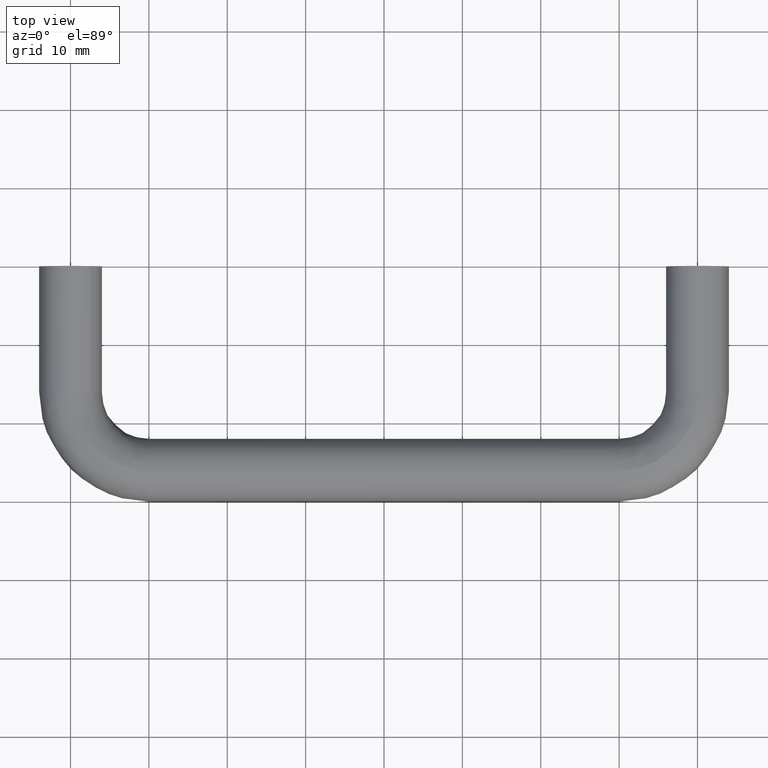
[diagram: clean part render]
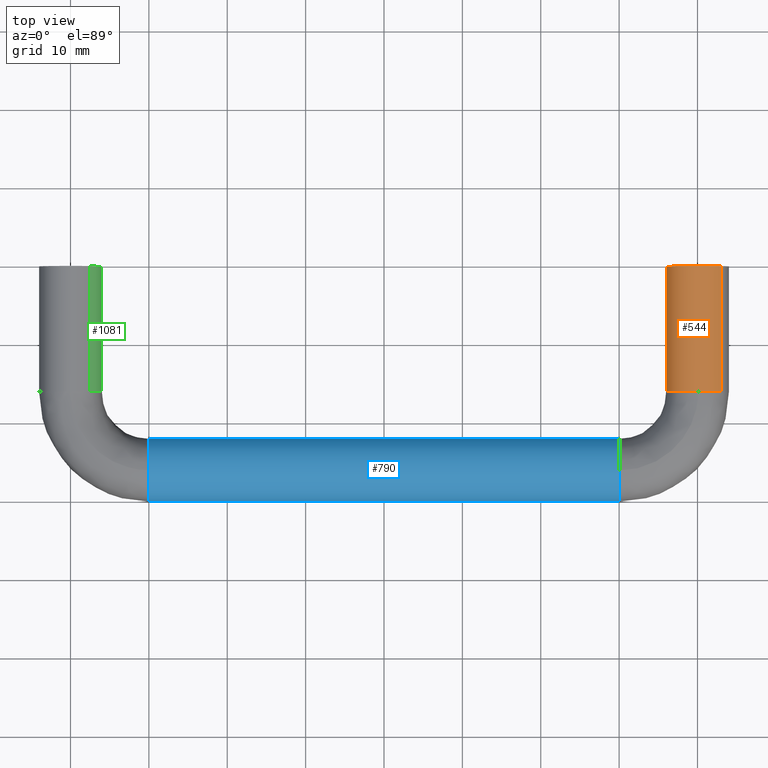
[diagram: same view with three faces highlighted in distinct colors, each labeled with its STEP entity id]
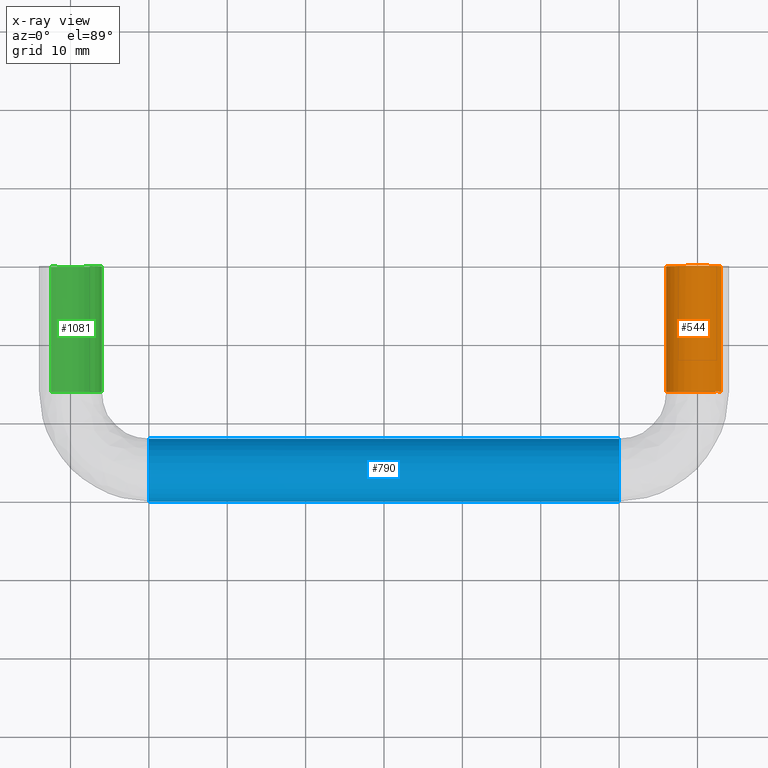
[diagram: x-ray of the same camera — body ghosted, the three highlighted faces saturated]
A machine part, top view with three faces highlighted in distinct colors.
The next image is the same camera in x-ray (body ghosted, the three faces saturated) — at least one of them is partly hidden behind the body in this view.
Their STEP definitions:

[orange] entity #544 — the highlighted face is a freeform B-spline surface patch.
#408=CARTESIAN_POINT('',(82.286842443536074,-16.400000000610678,-3.281821390393139));
#409=CARTESIAN_POINT('',(79.364407731794643,-16.400000000610675,-5.318235607460819));
#410=CARTESIAN_POINT('',(77.004177116843991,-16.400000000610682,-2.650480192862948));
#411=CARTESIAN_POINT('',(74.353696923981047,-16.400000000610671,0.345342690293061));
#412=CARTESIAN_POINT('',(77.349519807137057,-16.400000000610682,2.995822883156009));
#413=CARTESIAN_POINT('',(80.345342690293066,-16.400000000610671,5.646303076018955));
#414=CARTESIAN_POINT('',(82.995822883156009,-16.400000000610682,2.650480192862948));
#415=CARTESIAN_POINT('',(82.286842443536074,0.410000000015277,-3.281821390393139));
#416=CARTESIAN_POINT('',(79.364407731794643,0.410000000015277,-5.318235607460819));
#417=CARTESIAN_POINT('',(77.004177116843991,0.410000000015277,-2.650480192862948));
#418=CARTESIAN_POINT('',(74.353696923981047,0.410000000015277,0.345342690293061));
#419=CARTESIAN_POINT('',(77.349519807137057,0.410000000015277,2.995822883156009));
#420=CARTESIAN_POINT('',(80.345342690293066,0.410000000015277,5.646303076018955));
#421=CARTESIAN_POINT('',(82.995822883156009,0.410000000015277,2.650480192862948));
#429=(BOUNDED_SURFACE()B_SPLINE_SURFACE(2,1,((#408,#415),(#409,#416),(#410,#417),(#411,#418),(#412,#419),(#413,#420),(#414,#421)),.UNSPECIFIED.,.F.,.F.,.U.)B_SPLINE_SURFACE_WITH_KNOTS((3,2,2,3),(2,2),(0.0,6.097223638131967,12.724640636101499,19.352057634071031),(0.0,16.810000000625958),.UNSPECIFIED.)GEOMETRIC_REPRESENTATION_ITEM()RATIONAL_B_SPLINE_SURFACE(((0.956886118190660,0.956886118190660),(0.730538238691624,0.730538238691624),(1.0,1.0),(0.707106781186548,0.707106781186548),(1.0,1.0),(0.707106781186548,0.707106781186548),(1.0,1.0)))REPRESENTATION_ITEM('')SURFACE());
#430=CARTESIAN_POINT('',(79.899479618137065,-16.000000000145992,-3.998736757130948));
#431=VERTEX_POINT('',#430);
#432=CARTESIAN_POINT('',(82.286842443537779,-16.0,-3.281821390391957));
#433=VERTEX_POINT('',#432);
#434=CARTESIAN_POINT('',(79.899479618137065,-16.000000000145995,-3.998736757130948));
#435=CARTESIAN_POINT('',(79.949731871416873,-16.000000000000004,-4.000000000000000));
#436=CARTESIAN_POINT('',(80.0,-16.0,-4.0));
#437=CARTESIAN_POINT('',(81.256192549054944,-15.999999999999996,-4.0));
#438=CARTESIAN_POINT('',(82.286842443537779,-16.000000000000004,-3.281821390391957));
#446=(BOUNDED_CURVE()B_SPLINE_CURVE(2,(#434,#435,#436,#437,#438),.UNSPECIFIED.,.F.,.U.)B_SPLINE_CURVE_WITH_KNOTS((3,2,3),(0.245579891761969,0.250000000000000,0.348251884123377),.UNSPECIFIED.)CURVE()GEOMETRIC_REPRESENTATION_ITEM()RATIONAL_B_SPLINE_CURVE((0.989826157663860,0.994821521082637,1.0,0.884890757618471,0.860259114788940))REPRESENTATION_ITEM(''));
#447=EDGE_CURVE('',#431,#433,#446,.T.);
#448=ORIENTED_EDGE('',*,*,#447,.F.);
#449=CARTESIAN_POINT('',(76.0,-16.0,0.0));
#450=VERTEX_POINT('',#449);
#451=CARTESIAN_POINT('',(76.0,-16.0,0.0));
#452=CARTESIAN_POINT('',(76.0,-15.999999999999998,-3.900711504547809));
#453=CARTESIAN_POINT('',(79.899479618137065,-16.000000000145992,-3.998736757130948));
#461=(BOUNDED_CURVE()B_SPLINE_CURVE(2,(#451,#452,#453),.UNSPECIFIED.,.F.,.U.)B_SPLINE_CURVE_WITH_KNOTS((3,3),(0.0,0.245579891761969),.UNSPECIFIED.)CURVE()GEOMETRIC_REPRESENTATION_ITEM()RATIONAL_B_SPLINE_CURVE((1.0,0.712285260103910,0.989826157663860))REPRESENTATION_ITEM(''));
#462=EDGE_CURVE('',#450,#431,#461,.T.);
#463=ORIENTED_EDGE('',*,*,#462,.F.);
#464=CARTESIAN_POINT('',(80.100520384521587,-16.000000000595779,3.998736757064114));
#465=VERTEX_POINT('',#464);
#466=CARTESIAN_POINT('',(80.100520384521587,-16.000000000595783,3.998736757064113));
#467=CARTESIAN_POINT('',(80.050268131243058,-16.000000000000004,4.0));
#468=CARTESIAN_POINT('',(80.0,-16.0,4.0));
#469=CARTESIAN_POINT('',(76.0,-15.999999999999998,4.000000000000000));
#470=CARTESIAN_POINT('',(76.0,-16.0,0.0));
#478=(BOUNDED_CURVE()B_SPLINE_CURVE(2,(#466,#467,#468,#469,#470),.UNSPECIFIED.,.F.,.U.)B_SPLINE_CURVE_WITH_KNOTS((3,2,3),(0.745579891529291,0.750000000000000,1.0),.UNSPECIFIED.)CURVE()GEOMETRIC_REPRESENTATION_ITEM()RATIONAL_B_SPLINE_CURVE((0.989826157137938,0.994821520810037,1.0,0.707106781186548,1.0))REPRESENTATION_ITEM(''));
#479=EDGE_CURVE('',#465,#450,#478,.T.);
#480=ORIENTED_EDGE('',*,*,#479,.F.);
#481=CARTESIAN_POINT('',(82.995824228330804,-16.000000000153481,2.650478672026813));
#482=VERTEX_POINT('',#481);
#483=CARTESIAN_POINT('',(82.995824228330804,-16.000000000153474,2.650478672026814));
#484=CARTESIAN_POINT('',(81.841711962091964,-16.000000000329749,3.954966621062498));
#485=CARTESIAN_POINT('',(80.100520384521587,-16.000000000595783,3.998736757064113));
#493=(BOUNDED_CURVE()B_SPLINE_CURVE(2,(#483,#484,#485),.UNSPECIFIED.,.F.,.U.)B_SPLINE_CURVE_WITH_KNOTS((3,3),(0.615779811379745,0.745579891529291),.UNSPECIFIED.)CURVE()GEOMETRIC_REPRESENTATION_ITEM()RATIONAL_B_SPLINE_CURVE((0.854350171477797,0.843133240140239,0.989826157137938))REPRESENTATION_ITEM(''));
#494=EDGE_CURVE('',#482,#465,#493,.T.);
#495=ORIENTED_EDGE('',*,*,#494,.F.);
#496=CARTESIAN_POINT('',(82.995824313989800,9.978129E-015,2.650478575597776));
#497=VERTEX_POINT('',#496);
#498=CARTESIAN_POINT('',(82.995824228330804,-16.000000000153481,2.650478672026813));
#499=CARTESIAN_POINT('',(82.995824313989800,9.978129E-015,2.650478575597776));
#500=QUASI_UNIFORM_CURVE('',1,(#498,#499),.UNSPECIFIED.,.F.,.U.);
#501=EDGE_CURVE('',#482,#497,#500,.T.);
#502=ORIENTED_EDGE('',*,*,#501,.T.);
#503=CARTESIAN_POINT('',(76.0,1.040834E-014,0.0));
#504=VERTEX_POINT('',#503);
#505=CARTESIAN_POINT('',(82.995824313989786,9.978129E-015,2.650478575597777));
#506=CARTESIAN_POINT('',(81.801869913532229,1.040834E-014,4.0));
#507=CARTESIAN_POINT('',(80.0,1.040834E-014,4.0));
#508=CARTESIAN_POINT('',(76.0,1.040834E-014,4.000000000000000));
#509=CARTESIAN_POINT('',(76.0,1.040834E-014,0.0));
#517=(BOUNDED_CURVE()B_SPLINE_CURVE(2,(#505,#506,#507,#508,#509),.UNSPECIFIED.,.F.,.U.)B_SPLINE_CURVE_WITH_KNOTS((3,2,3),(0.615779806528000,0.750000000000000,1.0),.UNSPECIFIED.)CURVE()GEOMETRIC_REPRESENTATION_ITEM()RATIONAL_B_SPLINE_CURVE((0.854350172316343,0.842751262016887,1.0,0.707106781186548,1.0))REPRESENTATION_ITEM(''));
#518=EDGE_CURVE('',#497,#504,#517,.T.);
#519=ORIENTED_EDGE('',*,*,#518,.T.);
#520=CARTESIAN_POINT('',(82.286842456896807,1.080236E-014,-3.281821381083093));
#521=VERTEX_POINT('',#520);
#522=CARTESIAN_POINT('',(76.0,1.040834E-014,0.0));
#523=CARTESIAN_POINT('',(76.0,1.040834E-014,-4.000000000000000));
#524=CARTESIAN_POINT('',(80.0,1.040834E-014,-4.0));
#525=CARTESIAN_POINT('',(81.256192566943326,1.040834E-014,-4.0));
#526=CARTESIAN_POINT('',(82.286842456896807,1.080236E-014,-3.281821381083093));
#534=(BOUNDED_CURVE()B_SPLINE_CURVE(2,(#522,#523,#524,#525,#526),.UNSPECIFIED.,.F.,.U.)B_SPLINE_CURVE_WITH_KNOTS((3,2,3),(0.0,0.250000000000000,0.348251885361446),.UNSPECIFIED.)CURVE()GEOMETRIC_REPRESENTATION_ITEM()RATIONAL_B_SPLINE_CURVE((1.0,0.707106781186548,1.0,0.884890756167983,0.860259114168175))REPRESENTATION_ITEM(''));
#535=EDGE_CURVE('',#504,#521,#534,.T.);
#536=ORIENTED_EDGE('',*,*,#535,.T.);
#537=CARTESIAN_POINT('',(82.286842443537779,-16.0,-3.281821390391957));
#538=CARTESIAN_POINT('',(82.286842456896807,1.080236E-014,-3.281821381083093));
#539=QUASI_UNIFORM_CURVE('',1,(#537,#538),.UNSPECIFIED.,.F.,.U.);
#540=EDGE_CURVE('',#433,#521,#539,.T.);
#541=ORIENTED_EDGE('',*,*,#540,.F.);
#542=EDGE_LOOP('',(#448,#463,#480,#495,#502,#519,#536,#541));
#543=FACE_OUTER_BOUND('',#542,.T.);
#544=ADVANCED_FACE('',(#543),#429,.T.);

[blue] entity #790 — the highlighted face is a freeform B-spline surface patch.
#624=CARTESIAN_POINT('',(8.499999999361522,-23.512770200789916,-3.132680629416496));
#625=CARTESIAN_POINT('',(8.499999999361522,-23.237270391724497,-2.913944212959058));
#626=CARTESIAN_POINT('',(8.499999999361522,-23.004177116843991,-2.650480192862946));
#627=CARTESIAN_POINT('',(8.499999999361522,-20.353696923981044,0.345342690293064));
#628=CARTESIAN_POINT('',(8.499999999361522,-23.349519807137050,2.995822883156010));
#629=CARTESIAN_POINT('',(8.499999999361522,-26.345342690293069,5.646303076018955));
#630=CARTESIAN_POINT('',(8.499999999361522,-28.995822883156009,2.650480192862946));
#631=CARTESIAN_POINT('',(8.499999999361522,-31.646303076018953,-0.345342690293064));
#632=CARTESIAN_POINT('',(8.499999999361522,-28.650480192862950,-2.995822883156010));
#633=CARTESIAN_POINT('',(71.537500000196090,-23.512770200789905,-3.132680629416496));
#634=CARTESIAN_POINT('',(71.537500000196090,-23.237270391724483,-2.913944212959058));
#635=CARTESIAN_POINT('',(71.537500000196090,-23.004177116843980,-2.650480192862946));
#636=CARTESIAN_POINT('',(71.537500000196104,-20.353696923981044,0.345342690293064));
#637=CARTESIAN_POINT('',(71.537500000196090,-23.349519807137050,2.995822883156010));
#638=CARTESIAN_POINT('',(71.537500000196104,-26.345342690293052,5.646303076018955));
#639=CARTESIAN_POINT('',(71.537500000196090,-28.995822883155999,2.650480192862946));
#640=CARTESIAN_POINT('',(71.537500000196104,-31.646303076018953,-0.345342690293064));
#641=CARTESIAN_POINT('',(71.537500000196090,-28.650480192862940,-2.995822883156010));
#649=(BOUNDED_SURFACE()B_SPLINE_SURFACE(2,1,((#624,#633),(#625,#634),(#626,#635),(#627,#636),(#628,#637),(#629,#638),(#630,#639),(#631,#640),(#632,#641)),.UNSPECIFIED.,.F.,.F.,.U.)B_SPLINE_SURFACE_WITH_KNOTS((3,2,2,2,3),(2,2),(0.0,0.795290039756342,7.422707037725860,14.050124035695379,20.677541033664902),(0.0,63.037500000834576),.UNSPECIFIED.)GEOMETRIC_REPRESENTATION_ITEM()RATIONAL_B_SPLINE_SURFACE(((0.938140952186599,0.938140952186599),(0.964852813742386,0.964852813742386),(1.0,1.0),(0.707106781186548,0.707106781186548),(1.0,1.0),(0.707106781186548,0.707106781186548),(1.0,1.0),(0.707106781186548,0.707106781186548),(1.0,1.0)))REPRESENTATION_ITEM('')SURFACE());
#650=CARTESIAN_POINT('',(70.0,-22.0,0.0));
#651=VERTEX_POINT('',#650);
#652=CARTESIAN_POINT('',(70.000000000068184,-23.512772870504168,-3.132682749045181));
#653=VERTEX_POINT('',#652);
#654=CARTESIAN_POINT('',(70.0,-22.0,0.0));
#655=CARTESIAN_POINT('',(70.0,-22.000000000000007,-1.931600473656280));
#656=CARTESIAN_POINT('',(70.000000000068184,-23.512772870504158,-3.132682749045181));
#664=(BOUNDED_CURVE()B_SPLINE_CURVE(2,(#654,#655,#656),.UNSPECIFIED.,.F.,.U.)B_SPLINE_CURVE_WITH_KNOTS((3,3),(0.0,0.142272992642191),.UNSPECIFIED.)CURVE()GEOMETRIC_REPRESENTATION_ITEM()RATIONAL_B_SPLINE_CURVE((1.0,0.833316820939224,0.856349759543174))REPRESENTATION_ITEM(''));
#665=EDGE_CURVE('',#651,#653,#664,.T.);
#666=ORIENTED_EDGE('',*,*,#665,.T.);
#667=CARTESIAN_POINT('',(9.999999999955744,-23.512770200805161,-3.132680629395788));
#668=VERTEX_POINT('',#667);
#669=CARTESIAN_POINT('',(9.999999999955744,-23.512770200805161,-3.132680629395788));
#670=CARTESIAN_POINT('',(70.000000000068184,-23.512772870504168,-3.132682749045181));
#671=QUASI_UNIFORM_CURVE('',1,(#669,#670),.UNSPECIFIED.,.F.,.U.);
#672=EDGE_CURVE('',#668,#653,#671,.T.);
#673=ORIENTED_EDGE('',*,*,#672,.F.);
#674=CARTESIAN_POINT('',(10.0,-22.0,0.0));
#675=VERTEX_POINT('',#674);
#676=CARTESIAN_POINT('',(10.0,-22.0,0.0));
#677=CARTESIAN_POINT('',(10.0,-21.999999999999996,-1.931598371755627));
#678=CARTESIAN_POINT('',(9.999999999955744,-23.512770200805161,-3.132680629395788));
#686=(BOUNDED_CURVE()B_SPLINE_CURVE(2,(#676,#677,#678),.UNSPECIFIED.,.F.,.U.)B_SPLINE_CURVE_WITH_KNOTS((3,3),(0.0,0.142272863630943),.UNSPECIFIED.)CURVE()GEOMETRIC_REPRESENTATION_ITEM()RATIONAL_B_SPLINE_CURVE((1.0,0.833316972085303,0.856349717771409))REPRESENTATION_ITEM(''));
#687=EDGE_CURVE('',#675,#668,#686,.T.);
#688=ORIENTED_EDGE('',*,*,#687,.F.);
#689=CARTESIAN_POINT('',(9.999999999381382,-26.050264162204599,3.999684176781694));
#690=VERTEX_POINT('',#689);
#691=CARTESIAN_POINT('',(9.999999999381382,-26.050264162204602,3.999684176781694));
#692=CARTESIAN_POINT('',(10.0,-26.025133074639072,4.000000000000000));
#693=CARTESIAN_POINT('',(10.0,-26.0,4.0));
#694=CARTESIAN_POINT('',(10.000000000000002,-22.000000000000007,4.000000000000000));
#695=CARTESIAN_POINT('',(10.0,-22.0,0.0));
#703=(BOUNDED_CURVE()B_SPLINE_CURVE(2,(#691,#692,#693,#694,#695),.UNSPECIFIED.,.F.,.U.)B_SPLINE_CURVE_WITH_KNOTS((3,2,3),(0.747784295686822,0.750000000000000,1.0),.UNSPECIFIED.)CURVE()GEOMETRIC_REPRESENTATION_ITEM()RATIONAL_B_SPLINE_CURVE((0.994854295103350,0.997404140927098,1.0,0.707106781186548,1.0))REPRESENTATION_ITEM(''));
#704=EDGE_CURVE('',#690,#675,#703,.T.);
#705=ORIENTED_EDGE('',*,*,#704,.F.);
#706=CARTESIAN_POINT('',(10.0,-30.0,0.0));
#707=VERTEX_POINT('',#706);
#708=CARTESIAN_POINT('',(10.0,-30.0,0.0));
#709=CARTESIAN_POINT('',(10.0,-30.0,3.950047714352737));
#710=CARTESIAN_POINT('',(9.999999999381382,-26.050264162204602,3.999684176781694));
#718=(BOUNDED_CURVE()B_SPLINE_CURVE(2,(#708,#709,#710),.UNSPECIFIED.,.F.,.U.)B_SPLINE_CURVE_WITH_KNOTS((3,3),(0.500000000000000,0.747784295686821),.UNSPECIFIED.)CURVE()GEOMETRIC_REPRESENTATION_ITEM()RATIONAL_B_SPLINE_CURVE((1.0,0.709702640259450,0.994854295103348))REPRESENTATION_ITEM(''));
#719=EDGE_CURVE('',#707,#690,#718,.T.);
#720=ORIENTED_EDGE('',*,*,#719,.F.);
#721=CARTESIAN_POINT('',(10.0,-28.650478575597770,-2.995824313989811));
#722=VERTEX_POINT('',#721);
#723=CARTESIAN_POINT('',(10.0,-28.650478575597770,-2.995824313989811));
#724=CARTESIAN_POINT('',(10.000000000000002,-29.999999999999996,-1.801869913532229));
#725=CARTESIAN_POINT('',(10.0,-30.0,0.0));
#733=(BOUNDED_CURVE()B_SPLINE_CURVE(2,(#723,#724,#725),.UNSPECIFIED.,.F.,.U.)B_SPLINE_CURVE_WITH_KNOTS((3,3),(0.365779806528000,0.500000000000000),.UNSPECIFIED.)CURVE()GEOMETRIC_REPRESENTATION_ITEM()RATIONAL_B_SPLINE_CURVE((0.854350172316343,0.842751262016886,1.0))REPRESENTATION_ITEM(''));
#734=EDGE_CURVE('',#722,#707,#733,.T.);
#735=ORIENTED_EDGE('',*,*,#734,.F.);
#736=CARTESIAN_POINT('',(70.000000000000014,-28.650478555391039,-2.995824331867176));
#737=VERTEX_POINT('',#736);
#738=CARTESIAN_POINT('',(10.0,-28.650478575597770,-2.995824313989811));
#739=CARTESIAN_POINT('',(70.000000000000014,-28.650478555391039,-2.995824331867176));
#740=QUASI_UNIFORM_CURVE('',1,(#738,#739),.UNSPECIFIED.,.F.,.U.);
#741=EDGE_CURVE('',#722,#737,#740,.T.);
#742=ORIENTED_EDGE('',*,*,#741,.T.);
#743=CARTESIAN_POINT('',(70.0,-30.0,0.0));
#744=VERTEX_POINT('',#743);
#745=CARTESIAN_POINT('',(70.000000000000014,-28.650478555391039,-2.995824331867177));
#746=CARTESIAN_POINT('',(70.0,-30.0,-1.801869929759543));
#747=CARTESIAN_POINT('',(70.0,-30.0,0.0));
#755=(BOUNDED_CURVE()B_SPLINE_CURVE(2,(#745,#746,#747),.UNSPECIFIED.,.F.,.U.)B_SPLINE_CURVE_WITH_KNOTS((3,3),(0.365779805509314,0.500000000000000),.UNSPECIFIED.)CURVE()GEOMETRIC_REPRESENTATION_ITEM()RATIONAL_B_SPLINE_CURVE((0.854350172492407,0.842751260823421,1.0))REPRESENTATION_ITEM(''));
#756=EDGE_CURVE('',#737,#744,#755,.T.);
#757=ORIENTED_EDGE('',*,*,#756,.T.);
#758=CARTESIAN_POINT('',(70.000000000045731,-26.100520382309391,3.998736757119724));
#759=VERTEX_POINT('',#758);
#760=CARTESIAN_POINT('',(70.0,-30.0,0.0));
#761=CARTESIAN_POINT('',(69.999999999999986,-30.0,3.900711503676483));
#762=CARTESIAN_POINT('',(70.000000000045731,-26.100520382309391,3.998736757119725));
#770=(BOUNDED_CURVE()B_SPLINE_CURVE(2,(#760,#761,#762),.UNSPECIFIED.,.F.,.U.)B_SPLINE_CURVE_WITH_KNOTS((3,3),(0.500000000000000,0.745579891722896),.UNSPECIFIED.)CURVE()GEOMETRIC_REPRESENTATION_ITEM()RATIONAL_B_SPLINE_CURVE((1.0,0.712285260149688,0.989826157575542))REPRESENTATION_ITEM(''));
#771=EDGE_CURVE('',#744,#759,#770,.T.);
#772=ORIENTED_EDGE('',*,*,#771,.T.);
#773=CARTESIAN_POINT('',(70.000000000045731,-26.100520382309391,3.998736757119724));
#774=CARTESIAN_POINT('',(70.0,-26.050268129029810,4.000000000000000));
#775=CARTESIAN_POINT('',(70.0,-26.0,4.0));
#776=CARTESIAN_POINT('',(70.0,-22.000000000000007,4.000000000000000));
#777=CARTESIAN_POINT('',(70.0,-22.0,0.0));
#785=(BOUNDED_CURVE()B_SPLINE_CURVE(2,(#773,#774,#775,#776,#777),.UNSPECIFIED.,.F.,.U.)B_SPLINE_CURVE_WITH_KNOTS((3,2,3),(0.745579891722895,0.750000000000000,1.0),.UNSPECIFIED.)CURVE()GEOMETRIC_REPRESENTATION_ITEM()RATIONAL_B_SPLINE_CURVE((0.989826157575540,0.994821521036859,1.0,0.707106781186548,1.0))REPRESENTATION_ITEM(''));
#786=EDGE_CURVE('',#759,#651,#785,.T.);
#787=ORIENTED_EDGE('',*,*,#786,.T.);
#788=EDGE_LOOP('',(#666,#673,#688,#705,#720,#735,#742,#757,#772,#787));
#789=FACE_OUTER_BOUND('',#788,.T.);
#790=ADVANCED_FACE('',(#789),#649,.T.);

[green] entity #1081 — the highlighted face is a freeform B-spline surface patch.
#890=CARTESIAN_POINT('',(2.490057939572067,-15.999999999999970,3.130433110221893));
#891=VERTEX_POINT('',#890);
#907=CARTESIAN_POINT('',(2.490055038464335,0.0,3.130435417860953));
#908=VERTEX_POINT('',#907);
#909=CARTESIAN_POINT('',(2.490055038464335,0.0,3.130435417860953));
#910=CARTESIAN_POINT('',(2.490057939572067,-15.999999999999970,3.130433110221893));
#911=QUASI_UNIFORM_CURVE('',1,(#909,#910),.UNSPECIFIED.,.F.,.U.);
#912=EDGE_CURVE('',#908,#891,#911,.T.);
#931=CARTESIAN_POINT('',(-2.490055038464335,-2.775558E-016,-3.130435417860953));
#932=VERTEX_POINT('',#931);
#946=CARTESIAN_POINT('',(-2.490057939572063,-15.999999999999970,-3.130433110221893));
#947=VERTEX_POINT('',#946);
#948=CARTESIAN_POINT('',(-2.490055038464335,-2.775558E-016,-3.130435417860953));
#949=CARTESIAN_POINT('',(-2.490057939572063,-15.999999999999970,-3.130433110221893));
#950=QUASI_UNIFORM_CURVE('',1,(#948,#949),.UNSPECIFIED.,.F.,.U.);
#951=EDGE_CURVE('',#932,#947,#950,.T.);
#984=CARTESIAN_POINT('',(-2.490058546550477,0.400000000017802,-3.130432627409655));
#985=CARTESIAN_POINT('',(0.640374080859178,0.400000000017802,-5.620491173960132));
#986=CARTESIAN_POINT('',(3.130432627409655,0.400000000017803,-2.490058546550477));
#987=CARTESIAN_POINT('',(5.620491173960132,0.400000000017803,0.640374080859178));
#988=CARTESIAN_POINT('',(2.490058546550477,0.400000000017802,3.130432627409655));
#989=CARTESIAN_POINT('',(-2.490058546550475,-16.410000000730300,-3.130432627409655));
#990=CARTESIAN_POINT('',(0.640374080859181,-16.410000000730292,-5.620491173960132));
#991=CARTESIAN_POINT('',(3.130432627409657,-16.410000000730300,-2.490058546550477));
#992=CARTESIAN_POINT('',(5.620491173960136,-16.410000000730292,0.640374080859178));
#993=CARTESIAN_POINT('',(2.490058546550479,-16.410000000730300,3.130432627409655));
#1001=(BOUNDED_SURFACE()B_SPLINE_SURFACE(2,1,((#984,#989),(#985,#990),(#986,#991),(#987,#992),(#988,#993)),.UNSPECIFIED.,.F.,.F.,.U.)B_SPLINE_SURFACE_WITH_KNOTS((3,2,3),(2,2),(0.0,6.627416997969518,13.254833995939039),(0.0,16.810000000748101),.UNSPECIFIED.)GEOMETRIC_REPRESENTATION_ITEM()RATIONAL_B_SPLINE_SURFACE(((1.0,1.0),(0.707106781186548,0.707106781186548),(1.0,1.0),(0.707106781186548,0.707106781186548),(1.0,1.0)))REPRESENTATION_ITEM('')SURFACE());
#1002=CARTESIAN_POINT('',(4.000000000000002,-16.0,0.0));
#1003=VERTEX_POINT('',#1002);
#1004=CARTESIAN_POINT('',(2.490057939572067,-15.999999999999966,3.130433110221892));
#1005=CARTESIAN_POINT('',(4.000000000000002,-16.000000000000004,1.929371919297421));
#1006=CARTESIAN_POINT('',(4.000000000000002,-16.0,0.0));
#1014=(BOUNDED_CURVE()B_SPLINE_CURVE(2,(#1004,#1005,#1006),.UNSPECIFIED.,.F.,.U.)B_SPLINE_CURVE_WITH_KNOTS((3,3),(0.857863818689483,1.0),.UNSPECIFIED.)CURVE()GEOMETRIC_REPRESENTATION_ITEM()RATIONAL_B_SPLINE_CURVE((0.856305637500316,0.833477105384441,1.0))REPRESENTATION_ITEM(''));
#1015=EDGE_CURVE('',#891,#1003,#1014,.T.);
#1016=ORIENTED_EDGE('',*,*,#1015,.T.);
#1017=CARTESIAN_POINT('',(0.278933007919310,-16.000000000712049,-3.990262695248658));
#1018=VERTEX_POINT('',#1017);
#1019=CARTESIAN_POINT('',(4.000000000000002,-16.0,0.0));
#1020=CARTESIAN_POINT('',(4.000000000000003,-15.999999999999998,-3.730147386034906));
#1021=CARTESIAN_POINT('',(0.278933007919310,-16.000000000712053,-3.990262695248659));
#1029=(BOUNDED_CURVE()B_SPLINE_CURVE(2,(#1019,#1020,#1021),.UNSPECIFIED.,.F.,.U.)B_SPLINE_CURVE_WITH_KNOTS((3,3),(0.0,0.237833686395701),.UNSPECIFIED.)CURVE()GEOMETRIC_REPRESENTATION_ITEM()RATIONAL_B_SPLINE_CURVE((1.0,0.721360504197176,0.972879876092152))REPRESENTATION_ITEM(''));
#1030=EDGE_CURVE('',#1003,#1018,#1029,.T.);
#1031=ORIENTED_EDGE('',*,*,#1030,.T.);
#1032=CARTESIAN_POINT('',(0.278933007919310,-16.000000000712046,-3.990262695248658));
#1033=CARTESIAN_POINT('',(0.139636465122312,-16.000000000000004,-4.000000000000001));
#1034=CARTESIAN_POINT('',(1.959370E-015,-16.0,-4.0));
#1035=CARTESIAN_POINT('',(-1.396861663518612,-15.999999999999996,-4.0));
#1036=CARTESIAN_POINT('',(-2.490057939572063,-15.999999999999972,-3.130433110221893));
#1044=(BOUNDED_CURVE()B_SPLINE_CURVE(2,(#1032,#1033,#1034,#1035,#1036),.UNSPECIFIED.,.F.,.U.)B_SPLINE_CURVE_WITH_KNOTS((3,2,3),(0.237833686395701,0.250000000000000,0.357863818689483),.UNSPECIFIED.)CURVE()GEOMETRIC_REPRESENTATION_ITEM()RATIONAL_B_SPLINE_CURVE((0.972879876092152,0.985746276989372,1.0,0.873629675802106,0.856305637500315))REPRESENTATION_ITEM(''));
#1045=EDGE_CURVE('',#1018,#947,#1044,.T.);
#1046=ORIENTED_EDGE('',*,*,#1045,.T.);
#1047=ORIENTED_EDGE('',*,*,#951,.F.);
#1048=CARTESIAN_POINT('',(4.0,0.0,0.0));
#1049=VERTEX_POINT('',#1048);
#1050=CARTESIAN_POINT('',(4.0,0.0,0.0));
#1051=CARTESIAN_POINT('',(4.000000000000000,0.0,-4.000000000000000));
#1052=CARTESIAN_POINT('',(0.0,0.0,-4.0));
#1053=CARTESIAN_POINT('',(-1.396860019082649,0.0,-4.0));
#1054=CARTESIAN_POINT('',(-2.490055038464334,-2.775558E-016,-3.130435417860954));
#1062=(BOUNDED_CURVE()B_SPLINE_CURVE(2,(#1050,#1051,#1052,#1053,#1054),.UNSPECIFIED.,.F.,.U.)B_SPLINE_CURVE_WITH_KNOTS((3,2,3),(0.0,0.250000000000000,0.357863707754939),.UNSPECIFIED.)CURVE()GEOMETRIC_REPRESENTATION_ITEM()RATIONAL_B_SPLINE_CURVE((1.0,0.707106781186548,1.0,0.873629805770009,0.856305673134887))REPRESENTATION_ITEM(''));
#1063=EDGE_CURVE('',#1049,#932,#1062,.T.);
#1064=ORIENTED_EDGE('',*,*,#1063,.F.);
#1065=CARTESIAN_POINT('',(2.490055038464334,0.0,3.130435417860954));
#1066=CARTESIAN_POINT('',(4.0,0.0,1.929373725991010));
#1067=CARTESIAN_POINT('',(4.0,0.0,0.0));
#1075=(BOUNDED_CURVE()B_SPLINE_CURVE(2,(#1065,#1066,#1067),.UNSPECIFIED.,.F.,.U.)B_SPLINE_CURVE_WITH_KNOTS((3,3),(0.857863707754939,1.0),.UNSPECIFIED.)CURVE()GEOMETRIC_REPRESENTATION_ITEM()RATIONAL_B_SPLINE_CURVE((0.856305673134887,0.833476975416539,1.0))REPRESENTATION_ITEM(''));
#1076=EDGE_CURVE('',#908,#1049,#1075,.T.);
#1077=ORIENTED_EDGE('',*,*,#1076,.F.);
#1078=ORIENTED_EDGE('',*,*,#912,.T.);
#1079=EDGE_LOOP('',(#1016,#1031,#1046,#1047,#1064,#1077,#1078));
#1080=FACE_OUTER_BOUND('',#1079,.T.);
#1081=ADVANCED_FACE('',(#1080),#1001,.T.);